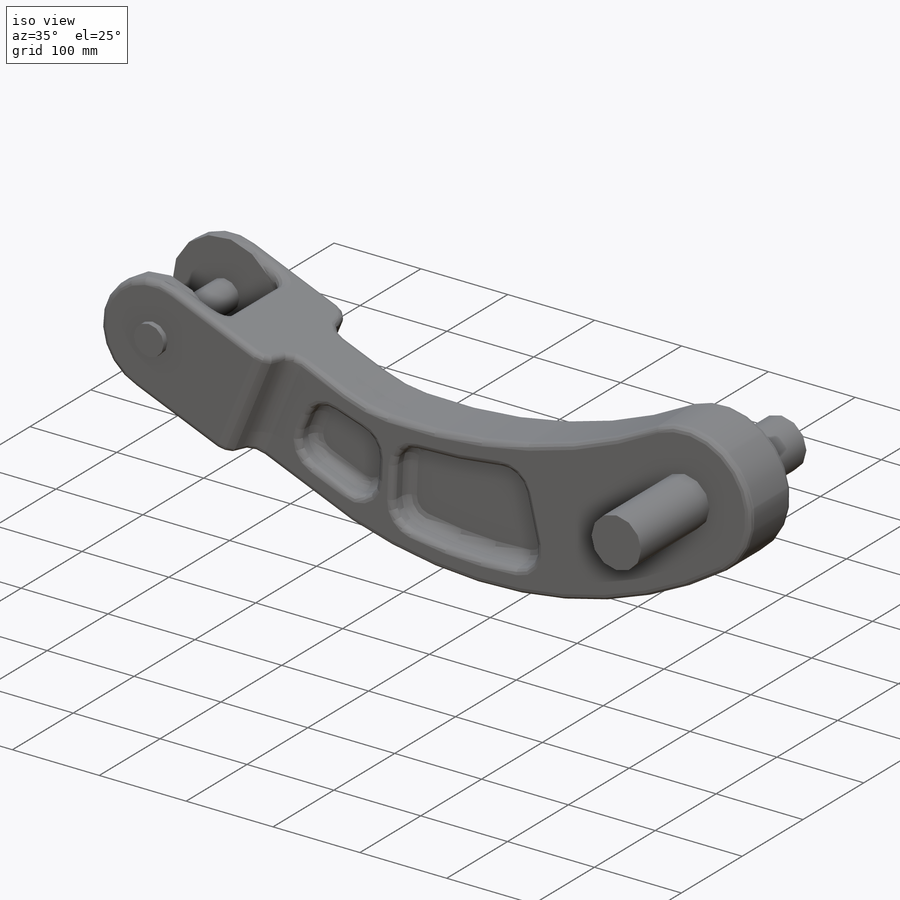
[diagram: iso view]
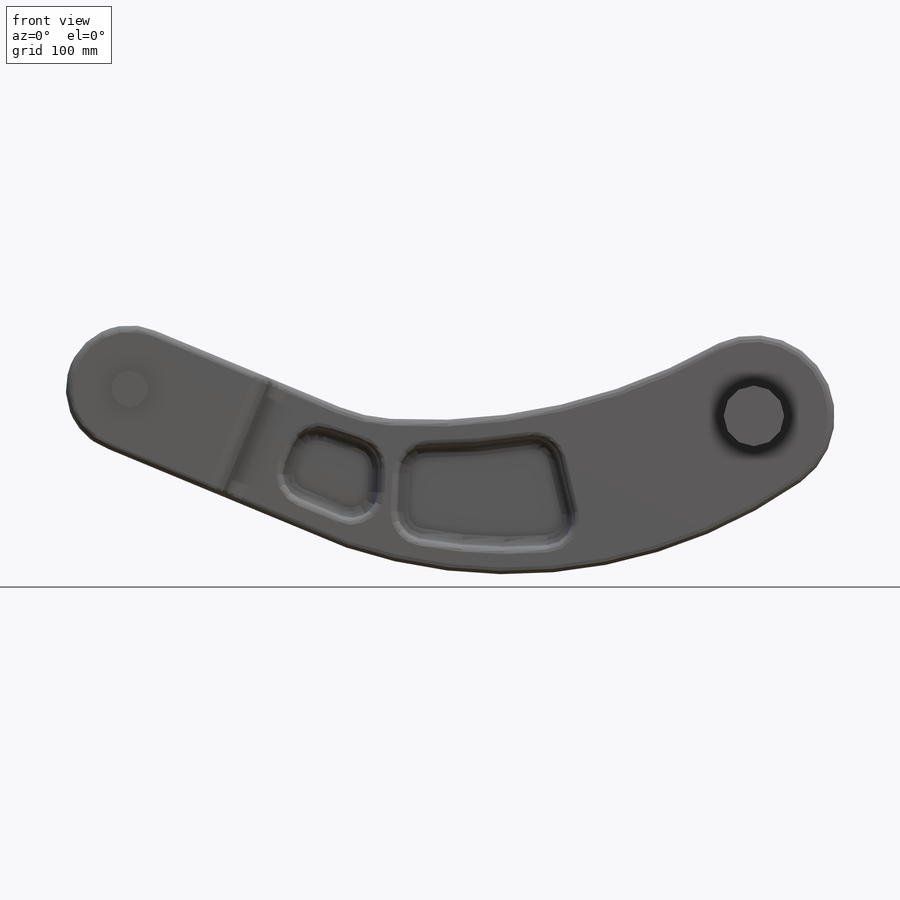
[diagram: front view]
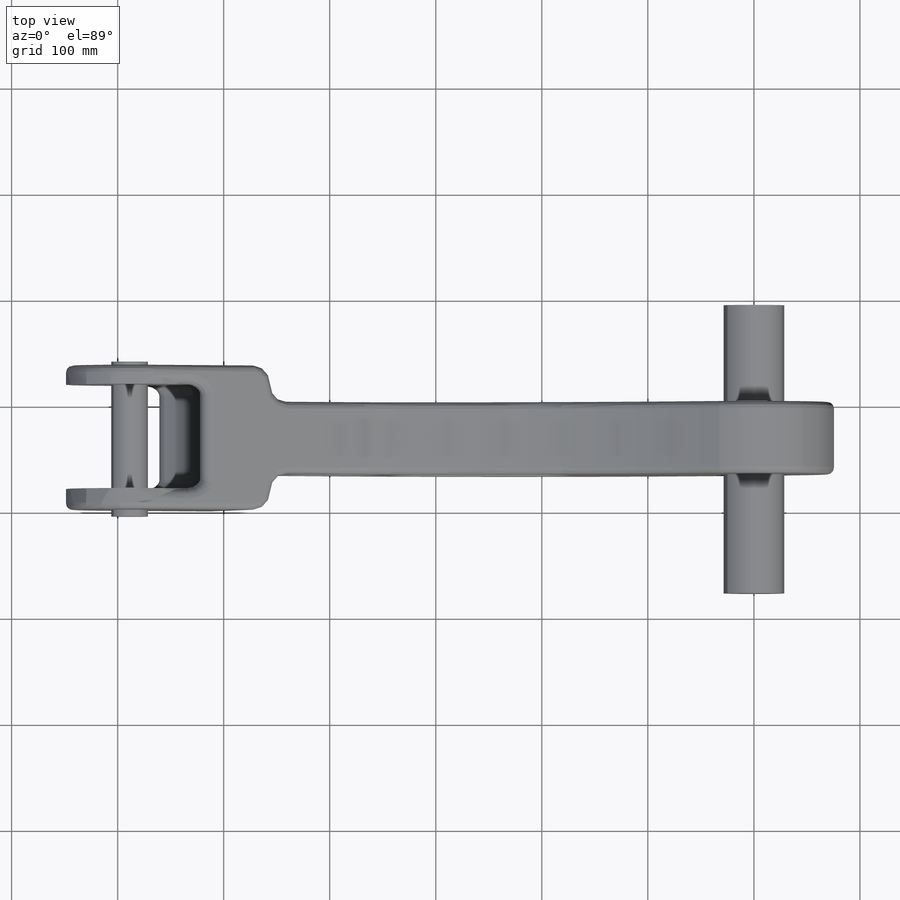
[diagram: top view]
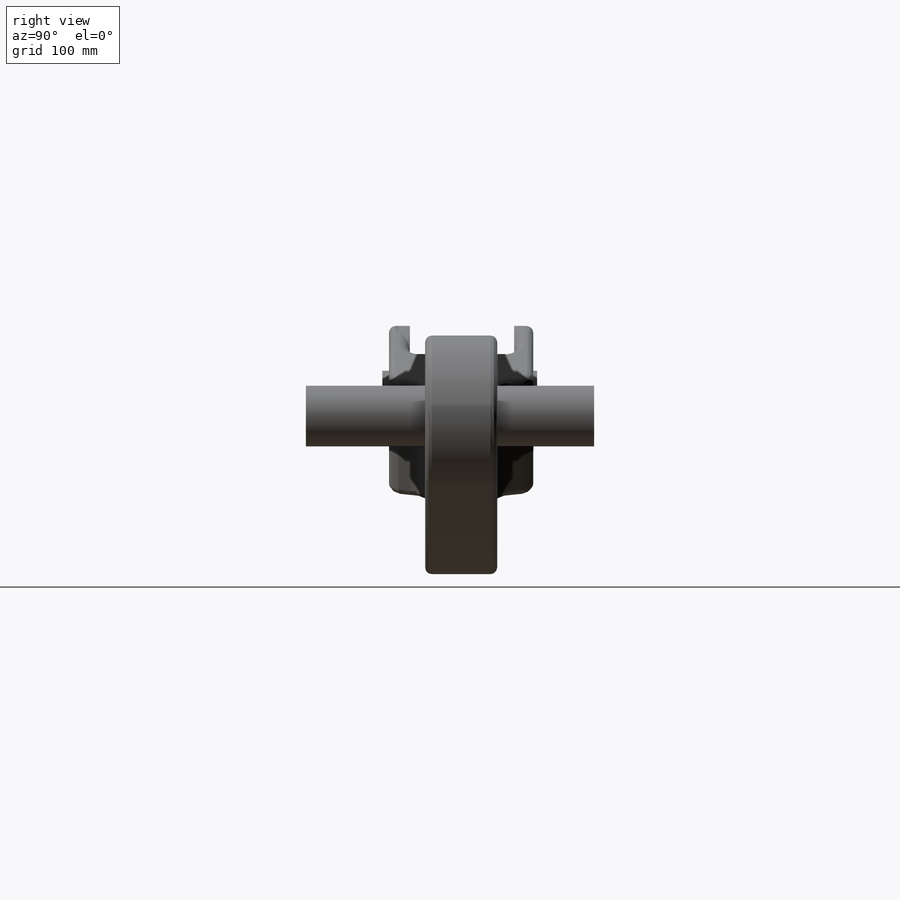
[diagram: right view]
SOLIDWORKS PART (.sldprt)
format: sldprt  version: not decoded by parser v0  size: 862,720 bytes
history: native  units: mm
features: sketch x9, cut_extrude x4, fillet x4, extrude x3, material x1, plane x1 (+13 scaffold rows collapsed)
feature tree (35):
  scaffold x13  (default folders/planes/origin — collapsed)
  material  "Material <not specified>"
  sketch  "Sketch1"
  sketch  "Sketch2"
  sketch  "Sketch3"  dims[c1.D2=~898.505605mm c1.D3=76.2mm c1.D4=~653.788397mm c1.D1=~119.990634mm c2.D2=~188.715723mm]
  extrude  "Extrude2"  [1 undecoded]
  plane  "Plane1"  Offset=19.693567mm
  sketch  "Sketch4"  dims[D1=139.7mm]
  cut_extrude  "Cut-Extrude1"  Depth=98.265mm
  fillet  "Fillet4"  Radius=9.652mm
  sketch  "Sketch5"
  cut_extrude  "Cut-Extrude2"  [1 undecoded]
  sketch  "Sketch6"  dims[D2=25.4mm D4=25.4mm D1=25.4mm D3=19.05mm]
  cut_extrude  "Cut-Extrude4"  Depth=25.4mm
  sketch  "Sketch7"  dims[D1=0.0mm D2=0.0mm]
  cut_extrude  "Cut-Extrude5"  Depth=25.4mm
  fillet  "Fillet6"  Radius=10.16mm
  fillet  "Fillet7"  Radius=6.35mm
  fillet  "Fillet9"  Radius=6.35mm
  sketch  "Sketch8"
  extrude  "Extrude3"  Depth=6.35mm
  sketch  "Sketch9"
  extrude  "Extrude4"  Depth=112.395mm
decode coverage: 13 of 20 modeling features carry decoded parameters
note: ~ marks probable driven/reference dimensions
note: 2 parameter values undecoded
note: suppression state not decoded; provenance and decode notes live in map.json
